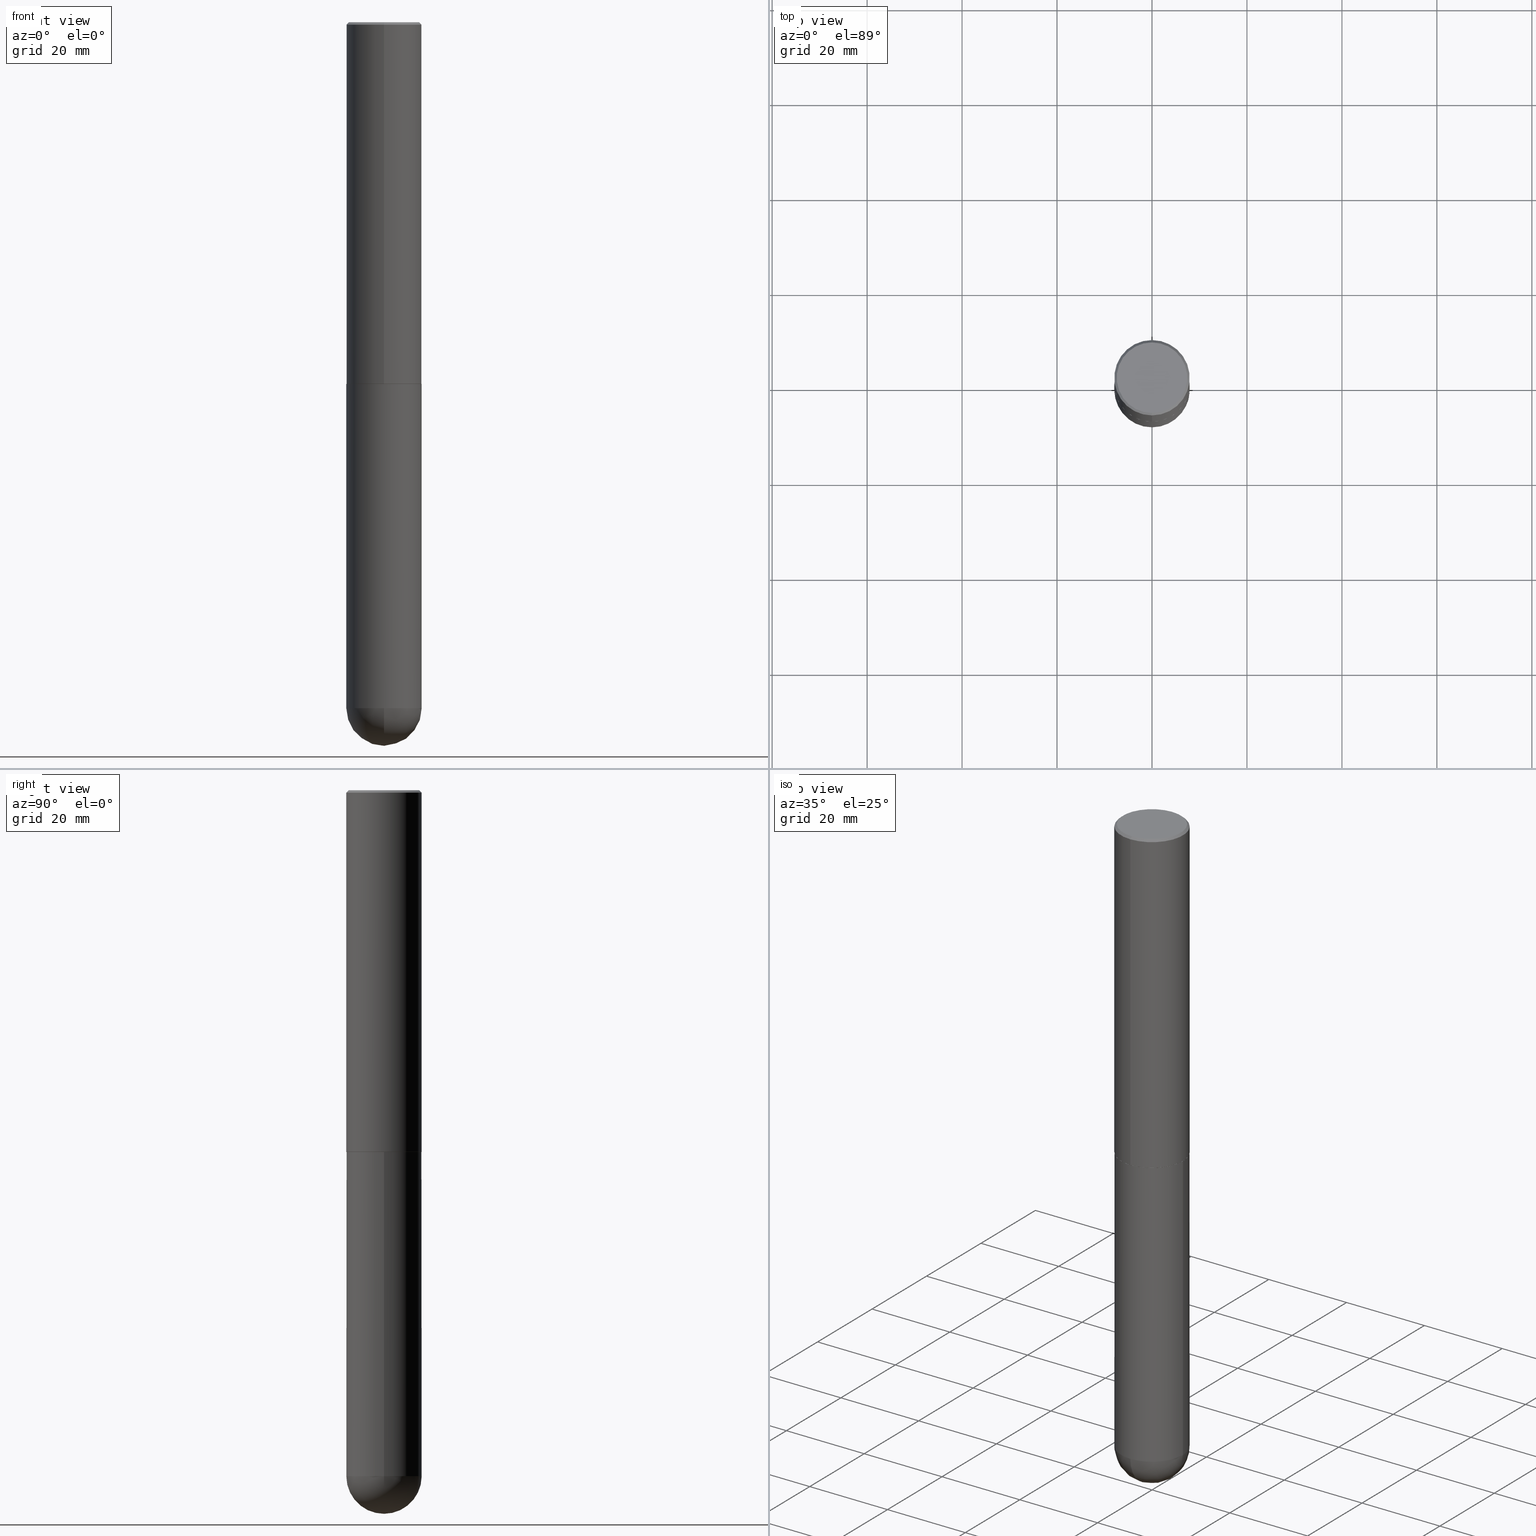
[diagram: canonical four-view strip — front | top / right | iso, engineering-drawing reading convention]
A machine part, canonical four-view strip (front | top / right | iso — engineering-drawing reading convention). The complete STEP part file that produces these views, byte-faithful:
ISO-10303-21;
HEADER;
FILE_DESCRIPTION (( 'STEP AP203' ),
    '1' );
FILE_NAME ('31975.STEP',
    '2024-02-21T17:23:46',
    ( '' ),
    ( '' ),
    'SwSTEP 2.0',
    'SolidWorks 2023',
    '' );
FILE_SCHEMA (( 'CONFIG_CONTROL_DESIGN' ));
ENDSEC;

DATA;
#1 = PERSON_AND_ORGANIZATION ( #324, #226 ) ;
#2 = FACE_OUTER_BOUND ( 'NONE', #50, .T. ) ;
#3 = EDGE_LOOP ( 'NONE', ( #315, #80 ) ) ;
#4 = AXIS2_PLACEMENT_3D ( 'NONE', #65, #375, #201 ) ;
#5 = FACE_OUTER_BOUND ( 'NONE', #394, .T. ) ;
#6 = EDGE_CURVE ( 'NONE', #12, #326, #279, .T. ) ;
#7 = CARTESIAN_POINT ( 'NONE',  ( 2.182175836776958741E-15, 0.3124999999999999445, -0.02000000000000116268 ) ) ;
#8 = DIRECTION ( 'NONE',  ( -4.937700262164884886E-15, -0.7071067811865933139, 0.7071067811865017205 ) ) ;
#9 = ORIENTED_EDGE ( 'NONE', *, *, #140, .F. ) ;
#10 = EDGE_CURVE ( 'NONE', #212, #243, #225, .T. ) ;
#11 = DATE_TIME_ROLE ( 'creation_date' ) ;
#12 = VERTEX_POINT ( 'NONE', #316 ) ;
#13 = DIRECTION ( 'NONE',  ( -2.445022724150551752E-29, 3.492120153706083922E-15, 1.000000000000000000 ) ) ;
#14 = ORIENTED_EDGE ( 'NONE', *, *, #52, .F. ) ;
#15 = ADVANCED_FACE ( 'NONE', ( #351 ), #345, .T. ) ;
#16 = VERTEX_POINT ( 'NONE', #67 ) ;
#17 = DIRECTION ( 'NONE',  ( 6.982962677686265922E-15, 1.000000000000000000, -3.496765431890244692E-15 ) ) ;
#18 = ORIENTED_EDGE ( 'NONE', *, *, #409, .F. ) ;
#19 = ADVANCED_BREP_SHAPE_REPRESENTATION ( '31975', ( #132, #283, #125 ), #153 ) ;
#20 = DATE_AND_TIME ( #172, #280 ) ;
#21 = ORIENTED_EDGE ( 'NONE', *, *, #400, .T. ) ;
#22 = CC_DESIGN_PERSON_AND_ORGANIZATION_ASSIGNMENT ( #56, #184, ( #252 ) ) ;
#23 = DIRECTION ( 'NONE',  ( -6.982962677686265133E-15, -1.000000000000000000, 3.496765431890256920E-15 ) ) ;
#24 = CC_DESIGN_PERSON_AND_ORGANIZATION_ASSIGNMENT ( #385, #195, ( #91 ) ) ;
#25 = DATE_AND_TIME ( #36, #237 ) ;
#26 = LINE ( 'NONE', #377, #30 ) ;
#27 = DIRECTION ( 'NONE',  ( 6.982962677686265133E-15, 1.000000000000000000, -3.496765431890256920E-15 ) ) ;
#28 = DIRECTION ( 'NONE',  ( -6.982962677686265922E-15, -1.000000000000000000, 3.496765431890251398E-15 ) ) ;
#29 = EDGE_CURVE ( 'NONE', #399, #174, #300, .T. ) ;
#30 = VECTOR ( 'NONE', #321, 39.37007874015748143 ) ;
#31 = LOCAL_TIME ( 12, 23, 46.00000000000000000, #145 ) ;
#32 = DIRECTION ( 'NONE',  ( 6.982962677686265133E-15, 1.000000000000000000, -3.496765431890256920E-15 ) ) ;
#33 = APPROVAL_ROLE ( '' ) ;
#34 = LINE ( 'NONE', #173, #63 ) ;
#35 = EDGE_LOOP ( 'NONE', ( #148, #185, #9, #357 ) ) ;
#36 = CALENDAR_DATE ( 2024, 21, 2 ) ;
#37 = CARTESIAN_POINT ( 'NONE',  ( 2.182175836777099159E-15, 0.3124999999999804601, -5.687500000000000888 ) ) ;
#38 = VECTOR ( 'NONE', #96, 39.37007874015748143 ) ;
#39 = AXIS2_PLACEMENT_3D ( 'NONE', #358, #205, #103 ) ;
#40 = DIRECTION ( 'NONE',  ( -1.000000000000000000, 6.982962677686265922E-15, -4.876176775795935793E-29 ) ) ;
#41 = CARTESIAN_POINT ( 'NONE',  ( -2.220446049250179369E-15, -0.3125000000000206501, -5.687499999999999112 ) ) ;
#42 = EDGE_CURVE ( 'NONE', #336, #212, #244, .T. ) ;
#43 = ORIENTED_EDGE ( 'NONE', *, *, #6, .F. ) ;
#44 = CARTESIAN_POINT ( 'NONE',  ( -2.182175836776888138E-15, -0.3125000000000109357, -2.998999999999999222 ) ) ;
#45 = AXIS2_PLACEMENT_3D ( 'NONE', #229, #353, #287 ) ;
#46 = CARTESIAN_POINT ( 'NONE',  ( 0.000000000000000000, 0.000000000000000000, 0.000000000000000000 ) ) ;
#47 = LOCAL_TIME ( 12, 23, 46.00000000000000000, #112 ) ;
#48 = ORIENTED_EDGE ( 'NONE', *, *, #10, .F. ) ;
#49 = FACE_OUTER_BOUND ( 'NONE', #142, .T. ) ;
#50 = EDGE_LOOP ( 'NONE', ( #123, #304, #43, #92, #119 ) ) ;
#51 = CYLINDRICAL_SURFACE ( 'NONE', #97, 0.3125000000000002776 ) ;
#52 = EDGE_CURVE ( 'NONE', #284, #16, #26, .T. ) ;
#53 = APPROVAL_STATUS ( 'not_yet_approved' ) ;
#54 = CC_DESIGN_SECURITY_CLASSIFICATION ( #91, ( #354 ) ) ;
#55 = ORIENTED_EDGE ( 'NONE', *, *, #259, .T. ) ;
#56 = PERSON_AND_ORGANIZATION ( #324, #226 ) ;
#57 = ORIENTED_EDGE ( 'NONE', *, *, #170, .F. ) ;
#58 = ADVANCED_FACE ( 'NONE', ( #260 ), #62, .T. ) ;
#59 = DIRECTION ( 'NONE',  ( -2.445468806185136597E-29, 3.491481338843145583E-15, 1.000000000000000000 ) ) ;
#60 = COORDINATED_UNIVERSAL_TIME_OFFSET ( 5, 0, .BEHIND. ) ;
#61 = DIRECTION ( 'NONE',  ( 1.000000000000000000, -6.982962677686266711E-15, 4.876176775795936353E-29 ) ) ;
#62 = CONICAL_SURFACE ( 'NONE', #89, 0.3125000000000000000, 0.7853981633974473908 ) ;
#63 = VECTOR ( 'NONE', #331, 39.37007874015748143 ) ;
#64 = FACE_OUTER_BOUND ( 'NONE', #332, .T. ) ;
#65 = CARTESIAN_POINT ( 'NONE',  ( 7.335068172451656657E-29, -1.047636046111825334E-14, -3.000000000000000888 ) ) ;
#66 = ADVANCED_FACE ( 'NONE', ( #291 ), #386, .T. ) ;
#67 = CARTESIAN_POINT ( 'NONE',  ( -2.143905624303602824E-15, -0.3125000000000000555, -0.01999999999999897693 ) ) ;
#68 = CARTESIAN_POINT ( 'NONE',  ( -0.3125000000000000000, -1.294567601634960147E-14, -5.687500000000000000 ) ) ;
#69 = CC_DESIGN_DATE_AND_TIME_ASSIGNMENT ( #301, #11, ( #252 ) ) ;
#70 = CARTESIAN_POINT ( 'NONE',  ( 2.182175836776958741E-15, 0.3124999999999999445, -0.02000000000000116268 ) ) ;
#71 = ORIENTED_EDGE ( 'NONE', *, *, #234, .F. ) ;
#72 = SPHERICAL_SURFACE ( 'NONE', #117, 0.3125000000000011102 ) ;
#73 = AXIS2_PLACEMENT_3D ( 'NONE', #382, #254, #61 ) ;
#74 = AXIS2_PLACEMENT_3D ( 'NONE', #325, #299, #133 ) ;
#75 = CARTESIAN_POINT ( 'NONE',  ( 0.3125000000000000000, -1.734829790237687290E-14, -5.687500000000000000 ) ) ;
#76 = ADVANCED_FACE ( 'NONE', ( #64 ), #94, .F. ) ;
#77 = DIRECTION ( 'NONE',  ( -1.000000000000000000, 6.982962677686265922E-15, -4.883557194083112901E-29 ) ) ;
#78 = DIRECTION ( 'NONE',  ( -6.982962677686265922E-15, -1.000000000000000000, 3.492120153706084316E-15 ) ) ;
#79 = DIRECTION ( 'NONE',  ( -2.445468806185136597E-29, 3.491481338843145583E-15, 1.000000000000000000 ) ) ;
#80 = ORIENTED_EDGE ( 'NONE', *, *, #122, .T. ) ;
#81 = ORIENTED_EDGE ( 'NONE', *, *, #247, .F. ) ;
#82 = EDGE_CURVE ( 'NONE', #256, #156, #143, .T. ) ;
#83 = PERSON_AND_ORGANIZATION ( #324, #226 ) ;
#84 = APPLICATION_CONTEXT ( 'configuration controlled 3d designs of mechanical parts and assemblies' ) ;
#85 = ORIENTED_EDGE ( 'NONE', *, *, #191, .F. ) ;
#86 = PERSON_AND_ORGANIZATION_ROLE ( 'design_owner' ) ;
#87 = EDGE_LOOP ( 'NONE', ( #355, #343, #218, #151 ) ) ;
#88 = DATE_AND_TIME ( #371, #31 ) ;
#89 = AXIS2_PLACEMENT_3D ( 'NONE', #251, #350, #27 ) ;
#90 = EDGE_CURVE ( 'NONE', #179, #326, #128, .T. ) ;
#91 = SECURITY_CLASSIFICATION ( '', '', #105 ) ;
#92 = ORIENTED_EDGE ( 'NONE', *, *, #115, .F. ) ;
#93 = DIRECTION ( 'NONE',  ( 1.000000000000000000, -6.982962677686269077E-15, 0.000000000000000000 ) ) ;
#94 = PLANE ( 'NONE',  #294 ) ;
#95 = DESIGN_CONTEXT ( 'detailed design', #199, 'design' ) ;
#96 = DIRECTION ( 'NONE',  ( 5.024295867788404755E-15, 0.7071067811865981989, 0.7071067811864968355 ) ) ;
#97 = AXIS2_PLACEMENT_3D ( 'NONE', #365, #13, #78 ) ;
#98 = EDGE_CURVE ( 'NONE', #192, #179, #181, .T. ) ;
#99 = DIRECTION ( 'NONE',  ( -6.982962677686265922E-15, -1.000000000000000000, 3.492120153706083922E-15 ) ) ;
#100 = APPROVAL ( #313, 'UNSPECIFIED' ) ;
#101 = DIRECTION ( 'NONE',  ( -2.445022724150551191E-29, 3.492120153706083922E-15, 1.000000000000000000 ) ) ;
#102 = CC_DESIGN_PERSON_AND_ORGANIZATION_ASSIGNMENT ( #253, #383, ( #354 ) ) ;
#103 = DIRECTION ( 'NONE',  ( -6.982962677686265922E-15, -1.000000000000000000, 3.496765431890251398E-15 ) ) ;
#104 = EDGE_CURVE ( 'NONE', #174, #368, #378, .T. ) ;
#105 = SECURITY_CLASSIFICATION_LEVEL ( 'unclassified' ) ;
#106 = CIRCLE ( 'NONE', #39, 0.3125000000000004996 ) ;
#107 = CARTESIAN_POINT ( 'NONE',  ( 0.000000000000000000, 0.000000000000000000, 0.000000000000000000 ) ) ;
#108 = DIRECTION ( 'NONE',  ( 2.445022724150551191E-29, -3.492120153706083922E-15, -1.000000000000000000 ) ) ;
#109 = CARTESIAN_POINT ( 'NONE',  ( 4.890045448301120179E-31, -6.984240307412191362E-17, -0.02000000000000006981 ) ) ;
#110 = EDGE_CURVE ( 'NONE', #156, #16, #311, .T. ) ;
#111 = DIRECTION ( 'NONE',  ( -6.982962677686265922E-15, -1.000000000000000000, 3.507991003100177457E-15 ) ) ;
#112 = COORDINATED_UNIVERSAL_TIME_OFFSET ( 5, 0, .BEHIND. ) ;
#113 = ORIENTED_EDGE ( 'NONE', *, *, #277, .T. ) ;
#114 = CARTESIAN_POINT ( 'NONE',  ( 2.220446049250352524E-15, 0.3124999999999900635, -2.999000000000001442 ) ) ;
#115 = EDGE_CURVE ( 'NONE', #243, #12, #411, .T. ) ;
#116 = EDGE_LOOP ( 'NONE', ( #249, #21, #339, #71 ) ) ;
#117 = AXIS2_PLACEMENT_3D ( 'NONE', #177, #77, #236 ) ;
#118 = DIRECTION ( 'NONE',  ( 0.000000000000000000, 0.000000000000000000, 1.000000000000000000 ) ) ;
#119 = ORIENTED_EDGE ( 'NONE', *, *, #170, .T. ) ;
#120 =( CONVERSION_BASED_UNIT ( 'INCH', #307 ) LENGTH_UNIT ( ) NAMED_UNIT ( #348 ) );
#121 = ORIENTED_EDGE ( 'NONE', *, *, #29, .F. ) ;
#122 = EDGE_CURVE ( 'NONE', #156, #256, #373, .T. ) ;
#123 = ORIENTED_EDGE ( 'NONE', *, *, #98, .T. ) ;
#124 = AXIS2_PLACEMENT_3D ( 'NONE', #268, #108, #384 ) ;
#125 = AXIS2_PLACEMENT_3D ( 'NONE', #46, #118, #273 ) ;
#126 = CARTESIAN_POINT ( 'NONE',  ( 1.390860383517796215E-28, -1.985780011467039117E-14, -5.687500000000000000 ) ) ;
#127 = DIRECTION ( 'NONE',  ( -2.445468806185136597E-29, 3.491481338843145583E-15, 1.000000000000000000 ) ) ;
#128 = LINE ( 'NONE', #255, #349 ) ;
#129 = CC_DESIGN_APPROVAL ( #322, ( #354 ) ) ;
#130 = DIRECTION ( 'NONE',  ( -2.445022724150551752E-29, 3.492120153706083922E-15, 1.000000000000000000 ) ) ;
#131 = CALENDAR_DATE ( 2024, 21, 2 ) ;
#132 = MANIFOLD_SOLID_BREP ( 'Body-Move/Copy2[1]', #168 ) ;
#133 = DIRECTION ( 'NONE',  ( -6.982962677686265922E-15, -1.000000000000000000, 3.507991003100177457E-15 ) ) ;
#134 = PERSON_AND_ORGANIZATION_ROLE ( 'design_supplier' ) ;
#135 = FACE_OUTER_BOUND ( 'NONE', #116, .T. ) ;
#136 = VECTOR ( 'NONE', #203, 39.37007874015748143 ) ;
#137 = ORIENTED_EDGE ( 'NONE', *, *, #42, .T. ) ;
#138 = CARTESIAN_POINT ( 'NONE',  ( -2.075300644325891437E-15, -0.2925000000000010369, -4.122761172855970597E-17 ) ) ;
#139 = FACE_OUTER_BOUND ( 'NONE', #3, .T. ) ;
#140 = EDGE_CURVE ( 'NONE', #284, #368, #176, .T. ) ;
#141 = CARTESIAN_POINT ( 'NONE',  ( 7.335068172451656657E-29, -1.047636046111825334E-14, -3.000000000000000888 ) ) ;
#142 = EDGE_LOOP ( 'NONE', ( #166, #241, #398, #278 ) ) ;
#143 = CIRCLE ( 'NONE', #45, 0.2925000000000010369 ) ;
#144 = CC_DESIGN_APPROVAL ( #100, ( #91 ) ) ;
#145 = COORDINATED_UNIVERSAL_TIME_OFFSET ( 5, 0, .BEHIND. ) ;
#146 = CARTESIAN_POINT ( 'NONE',  ( 1.357748405726407927E-28, -2.033198248281044304E-14, -5.687500000000000000 ) ) ;
#147 = EDGE_CURVE ( 'NONE', #16, #188, #152, .T. ) ;
#148 = ORIENTED_EDGE ( 'NONE', *, *, #29, .T. ) ;
#149 = CARTESIAN_POINT ( 'NONE',  ( -2.175192874099198574E-15, -0.3115000000000104352, -2.999999999999999556 ) ) ;
#150 = CC_DESIGN_PERSON_AND_ORGANIZATION_ASSIGNMENT ( #1, #134, ( #354 ) ) ;
#151 = ORIENTED_EDGE ( 'NONE', *, *, #210, .T. ) ;
#152 = CIRCLE ( 'NONE', #379, 0.3125000000000000000 ) ;
#153 =( GEOMETRIC_REPRESENTATION_CONTEXT ( 3 ) GLOBAL_UNCERTAINTY_ASSIGNED_CONTEXT ( ( #352 ) ) GLOBAL_UNIT_ASSIGNED_CONTEXT ( ( #120, #274, #242 ) ) REPRESENTATION_CONTEXT ( 'NONE', 'WORKASPACE' ) );
#154 = ADVANCED_FACE ( 'NONE', ( #160 ), #286, .T. ) ;
#155 = CARTESIAN_POINT ( 'NONE',  ( 7.336406418555409790E-29, -1.047444401652943635E-14, -3.000000000000000444 ) ) ;
#156 = VERTEX_POINT ( 'NONE', #138 ) ;
#157 = SHAPE_DEFINITION_REPRESENTATION ( #320, #19 ) ;
#158 = ORIENTED_EDGE ( 'NONE', *, *, #147, .F. ) ;
#159 = DATE_AND_TIME ( #131, #360 ) ;
#160 = FACE_OUTER_BOUND ( 'NONE', #364, .T. ) ;
#161 = AXIS2_PLACEMENT_3D ( 'NONE', #155, #303, #246 ) ;
#162 = APPROVAL_DATE_TIME ( #25, #100 ) ;
#163 = CARTESIAN_POINT ( 'NONE',  ( 4.890045448301120179E-31, -6.984240307412191362E-17, -0.02000000000000006981 ) ) ;
#164 = ADVANCED_FACE ( 'NONE', ( #139 ), #269, .F. ) ;
#165 = DIRECTION ( 'NONE',  ( -2.445022724150551752E-29, 3.492120153706083922E-15, 1.000000000000000000 ) ) ;
#166 = ORIENTED_EDGE ( 'NONE', *, *, #259, .F. ) ;
#167 = CARTESIAN_POINT ( 'NONE',  ( 4.890045448301120179E-31, -6.984240307412191362E-17, -0.02000000000000006981 ) ) ;
#168 = CLOSED_SHELL ( 'NONE', ( #363, #396, #239, #223, #15 ) ) ;
#169 = VECTOR ( 'NONE', #8, 39.37007874015748143 ) ;
#170 = EDGE_CURVE ( 'NONE', #243, #192, #334, .T. ) ;
#171 = DIRECTION ( 'NONE',  ( -2.445022724150551752E-29, 3.492120153706083922E-15, 1.000000000000000000 ) ) ;
#172 = CALENDAR_DATE ( 2024, 21, 2 ) ;
#173 = CARTESIAN_POINT ( 'NONE',  ( 2.220446049250314659E-15, 0.3125000000000002776, -1.091287548033152310E-15 ) ) ;
#174 = VERTEX_POINT ( 'NONE', #329 ) ;
#175 = DIRECTION ( 'NONE',  ( -6.982962677686265133E-15, -1.000000000000000000, 3.496765431890256920E-15 ) ) ;
#176 = CIRCLE ( 'NONE', #408, 0.3125000000000004996 ) ;
#177 = CARTESIAN_POINT ( 'NONE',  ( 1.357748405726407927E-28, -2.033198248281044304E-14, -5.687500000000000000 ) ) ;
#178 = CARTESIAN_POINT ( 'NONE',  ( 2.182175836777031317E-15, 0.3124999999999895639, -3.000000000000000888 ) ) ;
#179 = VERTEX_POINT ( 'NONE', #68 ) ;
#180 = FACE_OUTER_BOUND ( 'NONE', #35, .T. ) ;
#181 = CIRCLE ( 'NONE', #189, 0.3125000000000000000 ) ;
#182 = APPROVAL ( #53, 'UNSPECIFIED' ) ;
#183 = CIRCLE ( 'NONE', #245, 0.3125000000000000000 ) ;
#184 = PERSON_AND_ORGANIZATION_ROLE ( 'creator' ) ;
#185 = ORIENTED_EDGE ( 'NONE', *, *, #104, .T. ) ;
#186 = DIRECTION ( 'NONE',  ( -6.982962677686265922E-15, -1.000000000000000000, 3.507991003100177457E-15 ) ) ;
#187 = DIRECTION ( 'NONE',  ( -1.000000000000000000, 6.982962677686265922E-15, -4.883557194083112901E-29 ) ) ;
#188 = VERTEX_POINT ( 'NONE', #70 ) ;
#189 = AXIS2_PLACEMENT_3D ( 'NONE', #126, #59, #381 ) ;
#190 = AXIS2_PLACEMENT_3D ( 'NONE', #388, #230, #206 ) ;
#191 = EDGE_CURVE ( 'NONE', #179, #212, #266, .T. ) ;
#192 = VERTEX_POINT ( 'NONE', #37 ) ;
#193 = ORIENTED_EDGE ( 'NONE', *, *, #409, .T. ) ;
#194 = CARTESIAN_POINT ( 'NONE',  ( 2.213340621892785042E-15, 0.3114999999999895630, -3.000000000000001776 ) ) ;
#195 = PERSON_AND_ORGANIZATION_ROLE ( 'classification_officer' ) ;
#196 = APPROVAL_PERSON_ORGANIZATION ( #397, #322, #33 ) ;
#197 = DIRECTION ( 'NONE',  ( -7.105427357601000281E-15, -1.000000000000000000, 0.000000000000000000 ) ) ;
#198 = CARTESIAN_POINT ( 'NONE',  ( 2.598259038436874655E-44, -3.710980950423145144E-30, -1.062672756687592845E-15 ) ) ;
#199 = APPLICATION_CONTEXT ( 'configuration controlled 3d designs of mechanical parts and assemblies' ) ;
#200 = DIRECTION ( 'NONE',  ( 2.445022724150551752E-29, -3.492120153706083922E-15, -1.000000000000000000 ) ) ;
#201 = DIRECTION ( 'NONE',  ( -6.982962677686265922E-15, -1.000000000000000000, 3.507991003100177457E-15 ) ) ;
#202 = APPROVAL_STATUS ( 'not_yet_approved' ) ;
#203 = DIRECTION ( 'NONE',  ( 4.937700262164543309E-15, 0.7071067811865444641, -0.7071067811865506814 ) ) ;
#204 = ORIENTED_EDGE ( 'NONE', *, *, #110, .T. ) ;
#205 = DIRECTION ( 'NONE',  ( -2.445022724150551752E-29, 3.492120153706083922E-15, 1.000000000000000000 ) ) ;
#206 = DIRECTION ( 'NONE',  ( 1.000000000000000000, -6.982962677686262766E-15, 0.000000000000000000 ) ) ;
#207 = AXIS2_PLACEMENT_3D ( 'NONE', #107, #233, #305 ) ;
#208 = CARTESIAN_POINT ( 'NONE',  ( 2.112346210000098993E-15, 0.2925000000000010369, -2.084117901646626065E-15 ) ) ;
#209 = DIRECTION ( 'NONE',  ( -2.445022724150551752E-29, 3.492120153706083922E-15, 1.000000000000000000 ) ) ;
#210 = EDGE_CURVE ( 'NONE', #188, #16, #183, .T. ) ;
#211 = DIRECTION ( 'NONE',  ( -2.445022724150551752E-29, 3.492120153706083922E-15, 1.000000000000000000 ) ) ;
#212 = VERTEX_POINT ( 'NONE', #41 ) ;
#213 = AXIS2_PLACEMENT_3D ( 'NONE', #178, #235, #40 ) ;
#214 =( LENGTH_UNIT ( ) NAMED_UNIT ( * ) SI_UNIT ( $, .METRE. ) );
#215 = ORIENTED_EDGE ( 'NONE', *, *, #42, .F. ) ;
#216 = EDGE_LOOP ( 'NONE', ( #282, #221, #308, #309, #18 ) ) ;
#217 = APPLICATION_PROTOCOL_DEFINITION ( 'international standard', 'config_control_design', 1994, #199 ) ;
#218 = ORIENTED_EDGE ( 'NONE', *, *, #247, .T. ) ;
#219 = AXIS2_PLACEMENT_3D ( 'NONE', #362, #79, #93 ) ;
#220 = SPHERICAL_SURFACE ( 'NONE', #380, 0.3125000000000011102 ) ;
#221 = ORIENTED_EDGE ( 'NONE', *, *, #191, .T. ) ;
#222 = CARTESIAN_POINT ( 'NONE',  ( 1.390860383517796215E-28, -1.985780011467039117E-14, -5.687500000000000000 ) ) ;
#223 = ADVANCED_FACE ( 'NONE', ( #5 ), #295, .F. ) ;
#224 = CARTESIAN_POINT ( 'NONE',  ( -2.143905624303602824E-15, -0.3125000000000000555, -0.01999999999999897693 ) ) ;
#225 = CIRCLE ( 'NONE', #250, 0.3125000000000000000 ) ;
#226 = ORGANIZATION ( 'UNSPECIFIED', 'UNSPECIFIED', '' ) ;
#227 = DIRECTION ( 'NONE',  ( -2.445468806185136877E-29, 3.491481338843145188E-15, 1.000000000000000000 ) ) ;
#228 = CARTESIAN_POINT ( 'NONE',  ( 7.332623149727504925E-29, -1.047286834096454774E-14, -2.999000000000000554 ) ) ;
#229 = CARTESIAN_POINT ( 'NONE',  ( 2.598259038436874655E-44, -3.710980950423145144E-30, -1.062672756687592845E-15 ) ) ;
#230 = DIRECTION ( 'NONE',  ( -2.445468806185136597E-29, 3.491481338843145583E-15, 1.000000000000000000 ) ) ;
#231 = CIRCLE ( 'NONE', #366, 0.3125000000000011102 ) ;
#232 = APPROVAL_ROLE ( '' ) ;
#233 = DIRECTION ( 'NONE',  ( -2.445468806185136597E-29, 3.491481338843145583E-15, 1.000000000000000000 ) ) ;
#234 = EDGE_CURVE ( 'NONE', #368, #284, #106, .T. ) ;
#235 = DIRECTION ( 'NONE',  ( 2.438088387897960049E-29, -3.491481338843145188E-15, -1.000000000000000000 ) ) ;
#236 = DIRECTION ( 'NONE',  ( 6.982962677686265922E-15, 1.000000000000000000, -3.496765431890244692E-15 ) ) ;
#237 = LOCAL_TIME ( 12, 23, 46.00000000000000000, #376 ) ;
#238 = DIRECTION ( 'NONE',  ( 6.982962677686265922E-15, 1.000000000000000000, 0.000000000000000000 ) ) ;
#239 = ADVANCED_FACE ( 'NONE', ( #361 ), #72, .T. ) ;
#240 = CALENDAR_DATE ( 2024, 21, 2 ) ;
#241 = ORIENTED_EDGE ( 'NONE', *, *, #234, .T. ) ;
#242 =( NAMED_UNIT ( * ) SI_UNIT ( $, .STERADIAN. ) SOLID_ANGLE_UNIT ( ) );
#243 = VERTEX_POINT ( 'NONE', #75 ) ;
#244 = CIRCLE ( 'NONE', #263, 0.3125000000000011102 ) ;
#245 = AXIS2_PLACEMENT_3D ( 'NONE', #109, #209, #175 ) ;
#246 = DIRECTION ( 'NONE',  ( 1.000000000000000000, -6.982962677686269077E-15, 0.000000000000000000 ) ) ;
#247 = EDGE_CURVE ( 'NONE', #256, #188, #297, .T. ) ;
#248 = ORIENTED_EDGE ( 'NONE', *, *, #277, .F. ) ;
#249 = ORIENTED_EDGE ( 'NONE', *, *, #104, .F. ) ;
#250 = AXIS2_PLACEMENT_3D ( 'NONE', #222, #127, #412 ) ;
#251 = CARTESIAN_POINT ( 'NONE',  ( 4.890045448301120179E-31, -6.984240307412191362E-17, -0.02000000000000006981 ) ) ;
#252 = PRODUCT_DEFINITION ( 'UNKNOWN', '', #354, #95 ) ;
#253 = PERSON_AND_ORGANIZATION ( #324, #226 ) ;
#254 = DIRECTION ( 'NONE',  ( -2.445468806185136597E-29, 3.491481338843145583E-15, 1.000000000000000000 ) ) ;
#255 = CARTESIAN_POINT ( 'NONE',  ( -0.3125000000000000000, 2.220446049250313081E-15, -1.537167215704658232E-29 ) ) ;
#256 = VERTEX_POINT ( 'NONE', #208 ) ;
#257 = APPROVAL_PERSON_ORGANIZATION ( #340, #182, #395 ) ;
#258 = CARTESIAN_POINT ( 'NONE',  ( 0.3125000000000000000, -2.182175836776958347E-15, 1.523805242436230075E-29 ) ) ;
#259 = EDGE_CURVE ( 'NONE', #368, #188, #34, .T. ) ;
#260 = FACE_OUTER_BOUND ( 'NONE', #87, .T. ) ;
#261 = CARTESIAN_POINT ( 'NONE',  ( -0.3125000000000000000, -1.294567601634960147E-14, -3.000000000000000444 ) ) ;
#262 = APPROVAL_DATE_TIME ( #20, #322 ) ;
#263 = AXIS2_PLACEMENT_3D ( 'NONE', #314, #288, #197 ) ;
#264 = CARTESIAN_POINT ( 'NONE',  ( 1.357748405726407927E-28, -2.033198248281044304E-14, -5.687500000000000000 ) ) ;
#265 = EDGE_CURVE ( 'NONE', #399, #284, #298, .T. ) ;
#266 = CIRCLE ( 'NONE', #190, 0.3125000000000000000 ) ;
#267 = ORIENTED_EDGE ( 'NONE', *, *, #6, .T. ) ;
#268 = CARTESIAN_POINT ( 'NONE',  ( 2.042516583223240034E-15, 0.2925000000000010369, -1.552781523302829741E-15 ) ) ;
#269 = PLANE ( 'NONE',  #124 ) ;
#270 = ADVANCED_FACE ( 'NONE', ( #135 ), #335, .T. ) ;
#271 = CARTESIAN_POINT ( 'NONE',  ( 1.390860383517796215E-28, -1.985780011467039117E-14, -5.687500000000000000 ) ) ;
#272 = AXIS2_PLACEMENT_3D ( 'NONE', #163, #200, #32 ) ;
#273 = DIRECTION ( 'NONE',  ( 1.000000000000000000, 0.000000000000000000, 0.000000000000000000 ) ) ;
#274 =( NAMED_UNIT ( * ) PLANE_ANGLE_UNIT ( ) SI_UNIT ( $, .RADIAN. ) );
#275 = ORIENTED_EDGE ( 'NONE', *, *, #400, .F. ) ;
#276 = CARTESIAN_POINT ( 'NONE',  ( 7.335068172451656657E-29, -1.047636046111825334E-14, -3.000000000000000888 ) ) ;
#277 = EDGE_CURVE ( 'NONE', #336, #192, #231, .T. ) ;
#278 = ORIENTED_EDGE ( 'NONE', *, *, #210, .F. ) ;
#279 = CIRCLE ( 'NONE', #219, 0.3125000000000000000 ) ;
#280 = LOCAL_TIME ( 12, 23, 46.00000000000000000, #292 ) ;
#281 = EDGE_LOOP ( 'NONE', ( #215, #113, #57, #48 ) ) ;
#282 = ORIENTED_EDGE ( 'NONE', *, *, #90, .F. ) ;
#283 = MANIFOLD_SOLID_BREP ( 'Body-Move/Copy2[2]', #391 ) ;
#284 = VERTEX_POINT ( 'NONE', #44 ) ;
#285 = AXIS2_PLACEMENT_3D ( 'NONE', #347, #405, #390 ) ;
#286 = CYLINDRICAL_SURFACE ( 'NONE', #285, 0.3125000000000002776 ) ;
#287 = DIRECTION ( 'NONE',  ( -6.982962677686265922E-15, -1.000000000000000000, 3.492120153706083922E-15 ) ) ;
#288 = DIRECTION ( 'NONE',  ( -1.000000000000000000, 7.105427357601001070E-15, -4.926315508542082329E-29 ) ) ;
#289 = VECTOR ( 'NONE', #227, 39.37007874015748143 ) ;
#290 = DIRECTION ( 'NONE',  ( -4.851104656540959542E-15, -0.7071067811865493491, -0.7071067811865457964 ) ) ;
#291 = FACE_OUTER_BOUND ( 'NONE', #372, .T. ) ;
#292 = COORDINATED_UNIVERSAL_TIME_OFFSET ( 5, 0, .BEHIND. ) ;
#293 = CARTESIAN_POINT ( 'NONE',  ( 1.435505503246536289E-28, -2.140393529496225274E-14, -6.000000000000001776 ) ) ;
#294 = AXIS2_PLACEMENT_3D ( 'NONE', #407, #101, #406 ) ;
#295 = PLANE ( 'NONE',  #213 ) ;
#296 = PRODUCT ( '31975', '31975', '', ( #369 ) ) ;
#297 = LINE ( 'NONE', #7, #136 ) ;
#298 = LINE ( 'NONE', #333, #169 ) ;
#299 = DIRECTION ( 'NONE',  ( -2.445022724150551752E-29, 3.492120153706083922E-15, 1.000000000000000000 ) ) ;
#300 = CIRCLE ( 'NONE', #4, 0.3114999999999999991 ) ;
#301 = DATE_AND_TIME ( #240, #47 ) ;
#302 = ORIENTED_EDGE ( 'NONE', *, *, #122, .F. ) ;
#303 = DIRECTION ( 'NONE',  ( -2.445468806185136597E-29, 3.491481338843145583E-15, 1.000000000000000000 ) ) ;
#304 = ORIENTED_EDGE ( 'NONE', *, *, #90, .T. ) ;
#305 = DIRECTION ( 'NONE',  ( 1.000000000000000000, -6.982962677686266711E-15, 4.876176775795936353E-29 ) ) ;
#306 = CC_DESIGN_APPROVAL ( #182, ( #252 ) ) ;
#307 = LENGTH_MEASURE_WITH_UNIT ( LENGTH_MEASURE( 0.02539999999999999897 ), #214 );
#308 = ORIENTED_EDGE ( 'NONE', *, *, #10, .T. ) ;
#309 = ORIENTED_EDGE ( 'NONE', *, *, #115, .T. ) ;
#310 = PRODUCT_RELATED_PRODUCT_CATEGORY ( 'detail', '', ( #296 ) ) ;
#311 = LINE ( 'NONE', #224, #328 ) ;
#312 = AXIS2_PLACEMENT_3D ( 'NONE', #271, #327, #359 ) ;
#313 = APPROVAL_STATUS ( 'not_yet_approved' ) ;
#314 = CARTESIAN_POINT ( 'NONE',  ( 1.357748405726407927E-28, -2.033198248281044304E-14, -5.687500000000000000 ) ) ;
#315 = ORIENTED_EDGE ( 'NONE', *, *, #82, .T. ) ;
#316 = CARTESIAN_POINT ( 'NONE',  ( 0.3125000000000000000, -1.265661985330639628E-14, -3.000000000000000444 ) ) ;
#317 = ADVANCED_FACE ( 'NONE', ( #180 ), #410, .T. ) ;
#318 = DIRECTION ( 'NONE',  ( -2.445468806185136877E-29, 3.491481338843145188E-15, 1.000000000000000000 ) ) ;
#319 = APPROVAL_PERSON_ORGANIZATION ( #346, #100, #232 ) ;
#320 = PRODUCT_DEFINITION_SHAPE ( 'NONE', 'NONE',  #252 ) ;
#321 = DIRECTION ( 'NONE',  ( -2.445022724150551752E-29, 3.492120153706083922E-15, 1.000000000000000000 ) ) ;
#322 = APPROVAL ( #202, 'UNSPECIFIED' ) ;
#323 = CC_DESIGN_PERSON_AND_ORGANIZATION_ASSIGNMENT ( #83, #86, ( #296 ) ) ;
#324 = PERSON ( 'UNSPECIFIED', 'UNSPECIFIED', 'UNSPECIFIED', ('UNSPECIFIED'), ('UNSPECIFIED'), ('UNSPECIFIED') ) ;
#325 = CARTESIAN_POINT ( 'NONE',  ( 7.335068172451656657E-29, -1.047636046111825334E-14, -3.000000000000000888 ) ) ;
#326 = VERTEX_POINT ( 'NONE', #261 ) ;
#327 = DIRECTION ( 'NONE',  ( -2.445468806185136597E-29, 3.491481338843145583E-15, 1.000000000000000000 ) ) ;
#328 = VECTOR ( 'NONE', #290, 39.37007874015748143 ) ;
#329 = CARTESIAN_POINT ( 'NONE',  ( 2.216893335571587124E-15, 0.3114999999999895630, -3.000000000000001776 ) ) ;
#330 = CIRCLE ( 'NONE', #374, 0.3114999999999999991 ) ;
#331 = DIRECTION ( 'NONE',  ( -2.445022724150551752E-29, 3.492120153706083922E-15, 1.000000000000000000 ) ) ;
#332 = EDGE_LOOP ( 'NONE', ( #121, #275 ) ) ;
#333 = CARTESIAN_POINT ( 'NONE',  ( -2.175192874099198574E-15, -0.3115000000000104352, -2.999999999999999556 ) ) ;
#334 = CIRCLE ( 'NONE', #312, 0.3125000000000000000 ) ;
#335 = CONICAL_SURFACE ( 'NONE', #404, 0.3114999999999999991, 0.7853981633975165577 ) ;
#336 = VERTEX_POINT ( 'NONE', #293 ) ;
#337 = FACE_OUTER_BOUND ( 'NONE', #338, .T. ) ;
#338 = EDGE_LOOP ( 'NONE', ( #248, #137, #85, #370 ) ) ;
#339 = ORIENTED_EDGE ( 'NONE', *, *, #265, .T. ) ;
#340 = PERSON_AND_ORGANIZATION ( #324, #226 ) ;
#341 = ORIENTED_EDGE ( 'NONE', *, *, #140, .T. ) ;
#342 = APPROVAL_DATE_TIME ( #88, #182 ) ;
#343 = ORIENTED_EDGE ( 'NONE', *, *, #82, .F. ) ;
#344 = DATE_TIME_ROLE ( 'classification_date' ) ;
#345 = CYLINDRICAL_SURFACE ( 'NONE', #73, 0.3125000000000000000 ) ;
#346 = PERSON_AND_ORGANIZATION ( #324, #226 ) ;
#347 = CARTESIAN_POINT ( 'NONE',  ( 0.000000000000000000, 0.000000000000000000, 0.000000000000000000 ) ) ;
#348 = DIMENSIONAL_EXPONENTS ( 1.000000000000000000, 0.000000000000000000, 0.000000000000000000, 0.000000000000000000, 0.000000000000000000, 0.000000000000000000, 0.000000000000000000 ) ;
#349 = VECTOR ( 'NONE', #318, 39.37007874015748143 ) ;
#350 = DIRECTION ( 'NONE',  ( 2.445022724150551752E-29, -3.492120153706083922E-15, -1.000000000000000000 ) ) ;
#351 = FACE_OUTER_BOUND ( 'NONE', #216, .T. ) ;
#352 = UNCERTAINTY_MEASURE_WITH_UNIT (LENGTH_MEASURE( 1.000000000000000082E-05 ), #120, 'distance_accuracy_value', 'NONE');
#353 = DIRECTION ( 'NONE',  ( -2.445022724150551752E-29, 3.492120153706083922E-15, 1.000000000000000000 ) ) ;
#354 = PRODUCT_DEFINITION_FORMATION_WITH_SPECIFIED_SOURCE ( 'ANY', '', #296, .NOT_KNOWN. ) ;
#355 = ORIENTED_EDGE ( 'NONE', *, *, #110, .F. ) ;
#356 = DIRECTION ( 'NONE',  ( 1.000000000000000000, -6.982962677686265922E-15, 4.883557194083112340E-29 ) ) ;
#357 = ORIENTED_EDGE ( 'NONE', *, *, #265, .F. ) ;
#358 = CARTESIAN_POINT ( 'NONE',  ( 7.332623149727504925E-29, -1.047286834096454774E-14, -2.999000000000000554 ) ) ;
#359 = DIRECTION ( 'NONE',  ( 1.000000000000000000, -6.982962677686262766E-15, 0.000000000000000000 ) ) ;
#360 = LOCAL_TIME ( 12, 23, 46.00000000000000000, #60 ) ;
#361 = FACE_OUTER_BOUND ( 'NONE', #281, .T. ) ;
#362 = CARTESIAN_POINT ( 'NONE',  ( 7.336406418555409790E-29, -1.047444401652943635E-14, -3.000000000000000444 ) ) ;
#363 = ADVANCED_FACE ( 'NONE', ( #2 ), #387, .T. ) ;
#364 = EDGE_LOOP ( 'NONE', ( #341, #55, #158, #14 ) ) ;
#365 = CARTESIAN_POINT ( 'NONE',  ( 0.000000000000000000, 0.000000000000000000, 0.000000000000000000 ) ) ;
#366 = AXIS2_PLACEMENT_3D ( 'NONE', #264, #356, #238 ) ;
#367 = CC_DESIGN_DATE_AND_TIME_ASSIGNMENT ( #159, #344, ( #91 ) ) ;
#368 = VERTEX_POINT ( 'NONE', #114 ) ;
#369 = MECHANICAL_CONTEXT ( 'NONE', #84, 'mechanical' ) ;
#370 = ORIENTED_EDGE ( 'NONE', *, *, #98, .F. ) ;
#371 = CALENDAR_DATE ( 2024, 21, 2 ) ;
#372 = EDGE_LOOP ( 'NONE', ( #302, #204, #402, #81 ) ) ;
#373 = CIRCLE ( 'NONE', #403, 0.2925000000000010369 ) ;
#374 = AXIS2_PLACEMENT_3D ( 'NONE', #276, #211, #186 ) ;
#375 = DIRECTION ( 'NONE',  ( -2.445022724150551752E-29, 3.492120153706083922E-15, 1.000000000000000000 ) ) ;
#376 = COORDINATED_UNIVERSAL_TIME_OFFSET ( 5, 0, .BEHIND. ) ;
#377 = CARTESIAN_POINT ( 'NONE',  ( -2.182175836776959925E-15, -0.3125000000000002776, 1.091287548033152310E-15 ) ) ;
#378 = LINE ( 'NONE', #194, #38 ) ;
#379 = AXIS2_PLACEMENT_3D ( 'NONE', #167, #130, #23 ) ;
#380 = AXIS2_PLACEMENT_3D ( 'NONE', #146, #187, #17 ) ;
#381 = DIRECTION ( 'NONE',  ( 1.000000000000000000, -6.982962677686262766E-15, 0.000000000000000000 ) ) ;
#382 = CARTESIAN_POINT ( 'NONE',  ( 0.000000000000000000, 0.000000000000000000, 0.000000000000000000 ) ) ;
#383 = PERSON_AND_ORGANIZATION_ROLE ( 'creator' ) ;
#384 = DIRECTION ( 'NONE',  ( 6.982962677686265922E-15, 1.000000000000000000, -3.492120153706083922E-15 ) ) ;
#385 = PERSON_AND_ORGANIZATION ( #324, #226 ) ;
#386 = CONICAL_SURFACE ( 'NONE', #272, 0.3125000000000000000, 0.7853981633974473908 ) ;
#387 = CYLINDRICAL_SURFACE ( 'NONE', #207, 0.3125000000000000000 ) ;
#388 = CARTESIAN_POINT ( 'NONE',  ( 1.390860383517796215E-28, -1.985780011467039117E-14, -5.687500000000000000 ) ) ;
#389 = ADVANCED_FACE ( 'NONE', ( #49 ), #51, .T. ) ;
#390 = DIRECTION ( 'NONE',  ( -6.982962677686265922E-15, -1.000000000000000000, 3.492120153706084316E-15 ) ) ;
#391 = CLOSED_SHELL ( 'NONE', ( #317, #154, #66, #58, #389, #270, #76, #164 ) ) ;
#392 = DIRECTION ( 'NONE',  ( -2.445022724150551752E-29, 3.492120153706083922E-15, 1.000000000000000000 ) ) ;
#393 = CIRCLE ( 'NONE', #161, 0.3125000000000000000 ) ;
#394 = EDGE_LOOP ( 'NONE', ( #267, #193 ) ) ;
#395 = APPROVAL_ROLE ( '' ) ;
#396 = ADVANCED_FACE ( 'NONE', ( #337 ), #220, .T. ) ;
#397 = PERSON_AND_ORGANIZATION ( #324, #226 ) ;
#398 = ORIENTED_EDGE ( 'NONE', *, *, #52, .T. ) ;
#399 = VERTEX_POINT ( 'NONE', #149 ) ;
#400 = EDGE_CURVE ( 'NONE', #174, #399, #330, .T. ) ;
#401 = APPLICATION_PROTOCOL_DEFINITION ( 'international standard', 'config_control_design', 1994, #84 ) ;
#402 = ORIENTED_EDGE ( 'NONE', *, *, #147, .T. ) ;
#403 = AXIS2_PLACEMENT_3D ( 'NONE', #198, #165, #99 ) ;
#404 = AXIS2_PLACEMENT_3D ( 'NONE', #141, #392, #111 ) ;
#405 = DIRECTION ( 'NONE',  ( -2.445022724150551752E-29, 3.492120153706083922E-15, 1.000000000000000000 ) ) ;
#406 = DIRECTION ( 'NONE',  ( -6.982962677686265922E-15, -1.000000000000000000, 3.492120153706083922E-15 ) ) ;
#407 = CARTESIAN_POINT ( 'NONE',  ( 7.335068172451655536E-29, -1.047636046111825177E-14, -3.000000000000000444 ) ) ;
#408 = AXIS2_PLACEMENT_3D ( 'NONE', #228, #171, #28 ) ;
#409 = EDGE_CURVE ( 'NONE', #326, #12, #393, .T. ) ;
#410 = CONICAL_SURFACE ( 'NONE', #74, 0.3114999999999999991, 0.7853981633975165577 ) ;
#411 = LINE ( 'NONE', #258, #289 ) ;
#412 = DIRECTION ( 'NONE',  ( 1.000000000000000000, -6.982962677686262766E-15, 0.000000000000000000 ) ) ;
ENDSEC;
END-ISO-10303-21;
